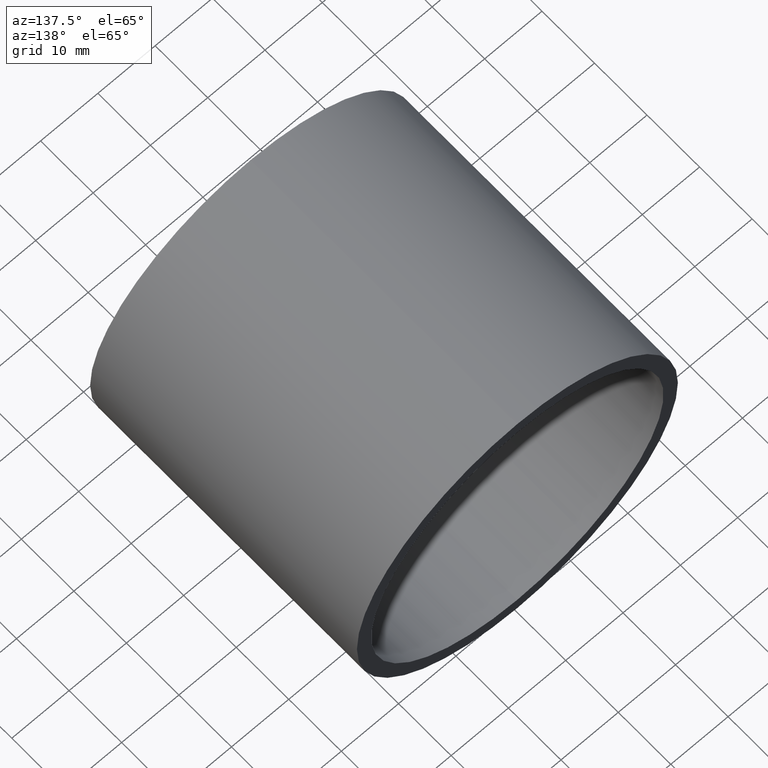
[diagram: clean part render]
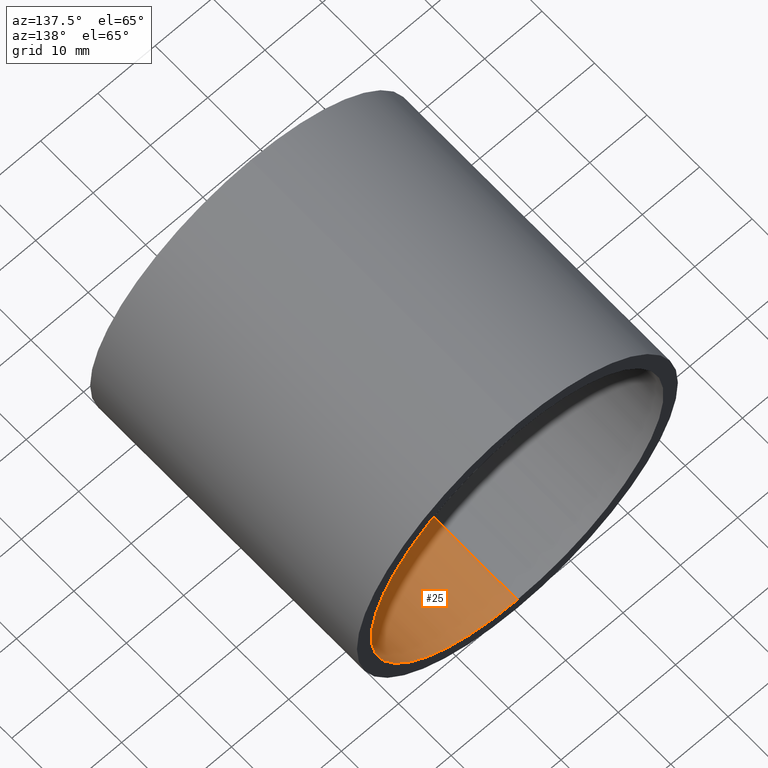
[diagram: same view with one face highlighted and labeled with its STEP entity id]
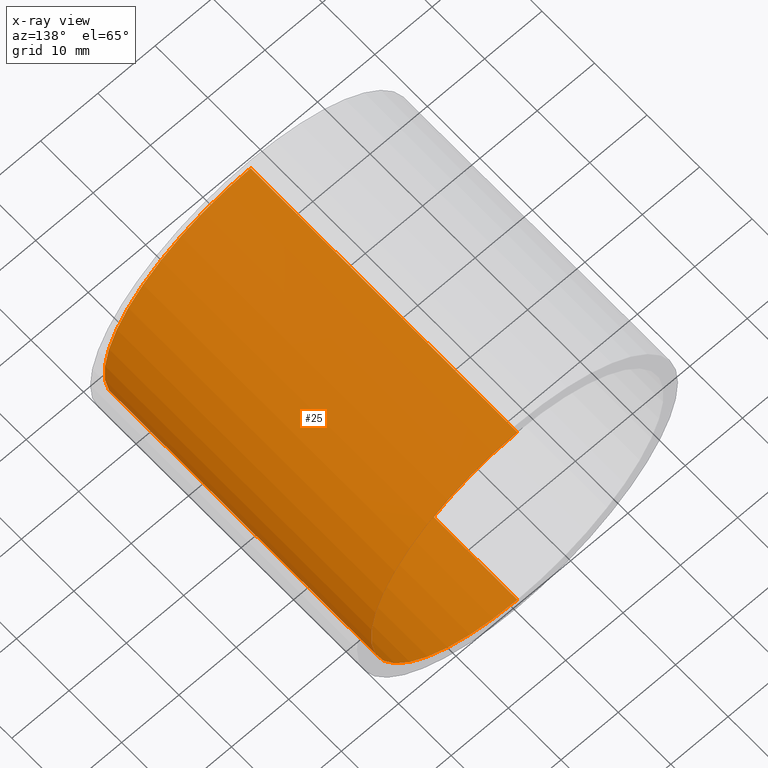
[diagram: x-ray of the same camera — body ghosted, the highlighted face saturated]
A machine part, auxiliary view. The second image highlights one B-rep face of the part: STEP entity #25.
The next image is the same camera in x-ray: the body ghosted, the highlighted face saturated — about 0% of this face is hidden behind the body in this view.
In plain terms, the highlighted cylindrical surface (partial cylindrical patch) has radius 25.5 mm, axis along (-0, 1, -0).
Its self-contained STEP definition (entity closure, byte-faithful):
#2 = CARTESIAN_POINT ( 'NONE',  ( 3.122849337825752600E-015, -2.775557561562891400E-014, -25.50000000000001400 ) ) ;
#10 = VECTOR ( 'NONE', #135, 1000.000000000000000 ) ;
#13 = AXIS2_PLACEMENT_3D ( 'NONE', #50, #179, #106 ) ;
#25 = ADVANCED_FACE ( 'NONE', ( #215 ), #243, .F. ) ;
#38 = DIRECTION ( 'NONE',  ( 0.0000000000000000000, 0.0000000000000000000, 1.000000000000000000 ) ) ;
#46 = LINE ( 'NONE', #87, #10 ) ;
#49 = DIRECTION ( 'NONE',  ( 0.0000000000000000000, 0.0000000000000000000, 1.000000000000000000 ) ) ;
#50 = CARTESIAN_POINT ( 'NONE',  ( 0.0000000000000000000, 161.3761669434274500, 0.0000000000000000000 ) ) ;
#62 = ORIENTED_EDGE ( 'NONE', *, *, #69, .F. ) ;
#69 = EDGE_CURVE ( 'NONE', #178, #109, #102, .T. ) ;
#74 = EDGE_CURVE ( 'NONE', #123, #96, #155, .T. ) ;
#77 = ORIENTED_EDGE ( 'NONE', *, *, #74, .T. ) ;
#85 = CARTESIAN_POINT ( 'NONE',  ( 0.0000000000000000000, -2.775557561562891400E-014, 0.0000000000000000000 ) ) ;
#87 = CARTESIAN_POINT ( 'NONE',  ( 3.122849337825752600E-015, 161.3761669434274500, -25.50000000000001400 ) ) ;
#88 = CARTESIAN_POINT ( 'NONE',  ( 3.122849337825752200E-015, 50.79999999999998300, -25.50000000000001100 ) ) ;
#92 = DIRECTION ( 'NONE',  ( -0.0000000000000000000, 1.000000000000000000, -0.0000000000000000000 ) ) ;
#95 = ORIENTED_EDGE ( 'NONE', *, *, #194, .T. ) ;
#96 = VERTEX_POINT ( 'NONE', #88 ) ;
#102 = CIRCLE ( 'NONE', #131, 25.50000000000001400 ) ;
#106 = DIRECTION ( 'NONE',  ( 0.0000000000000000000, 0.0000000000000000000, 1.000000000000000000 ) ) ;
#109 = VERTEX_POINT ( 'NONE', #2 ) ;
#113 = CARTESIAN_POINT ( 'NONE',  ( 0.0000000000000000000, 161.3761669434274500, 25.50000000000001400 ) ) ;
#115 = EDGE_CURVE ( 'NONE', #109, #96, #46, .T. ) ;
#122 = LINE ( 'NONE', #113, #134 ) ;
#123 = VERTEX_POINT ( 'NONE', #138 ) ;
#124 = AXIS2_PLACEMENT_3D ( 'NONE', #171, #226, #38 ) ;
#127 = DIRECTION ( 'NONE',  ( -0.0000000000000000000, 1.000000000000000000, -0.0000000000000000000 ) ) ;
#131 = AXIS2_PLACEMENT_3D ( 'NONE', #85, #127, #49 ) ;
#134 = VECTOR ( 'NONE', #92, 1000.000000000000000 ) ;
#135 = DIRECTION ( 'NONE',  ( -0.0000000000000000000, 1.000000000000000000, -0.0000000000000000000 ) ) ;
#138 = CARTESIAN_POINT ( 'NONE',  ( 0.0000000000000000000, 50.79999999999998300, 25.50000000000001100 ) ) ;
#148 = EDGE_LOOP ( 'NONE', ( #192, #62, #95, #77 ) ) ;
#155 = CIRCLE ( 'NONE', #124, 25.50000000000001100 ) ;
#171 = CARTESIAN_POINT ( 'NONE',  ( 0.0000000000000000000, 50.79999999999998300, 0.0000000000000000000 ) ) ;
#178 = VERTEX_POINT ( 'NONE', #185 ) ;
#179 = DIRECTION ( 'NONE',  ( -0.0000000000000000000, 1.000000000000000000, -0.0000000000000000000 ) ) ;
#185 = CARTESIAN_POINT ( 'NONE',  ( 0.0000000000000000000, -2.775557561562891400E-014, 25.50000000000001400 ) ) ;
#192 = ORIENTED_EDGE ( 'NONE', *, *, #115, .F. ) ;
#194 = EDGE_CURVE ( 'NONE', #178, #123, #122, .T. ) ;
#215 = FACE_OUTER_BOUND ( 'NONE', #148, .T. ) ;
#226 = DIRECTION ( 'NONE',  ( -0.0000000000000000000, 1.000000000000000000, -0.0000000000000000000 ) ) ;
#243 = CYLINDRICAL_SURFACE ( 'NONE', #13, 25.50000000000001400 ) ;